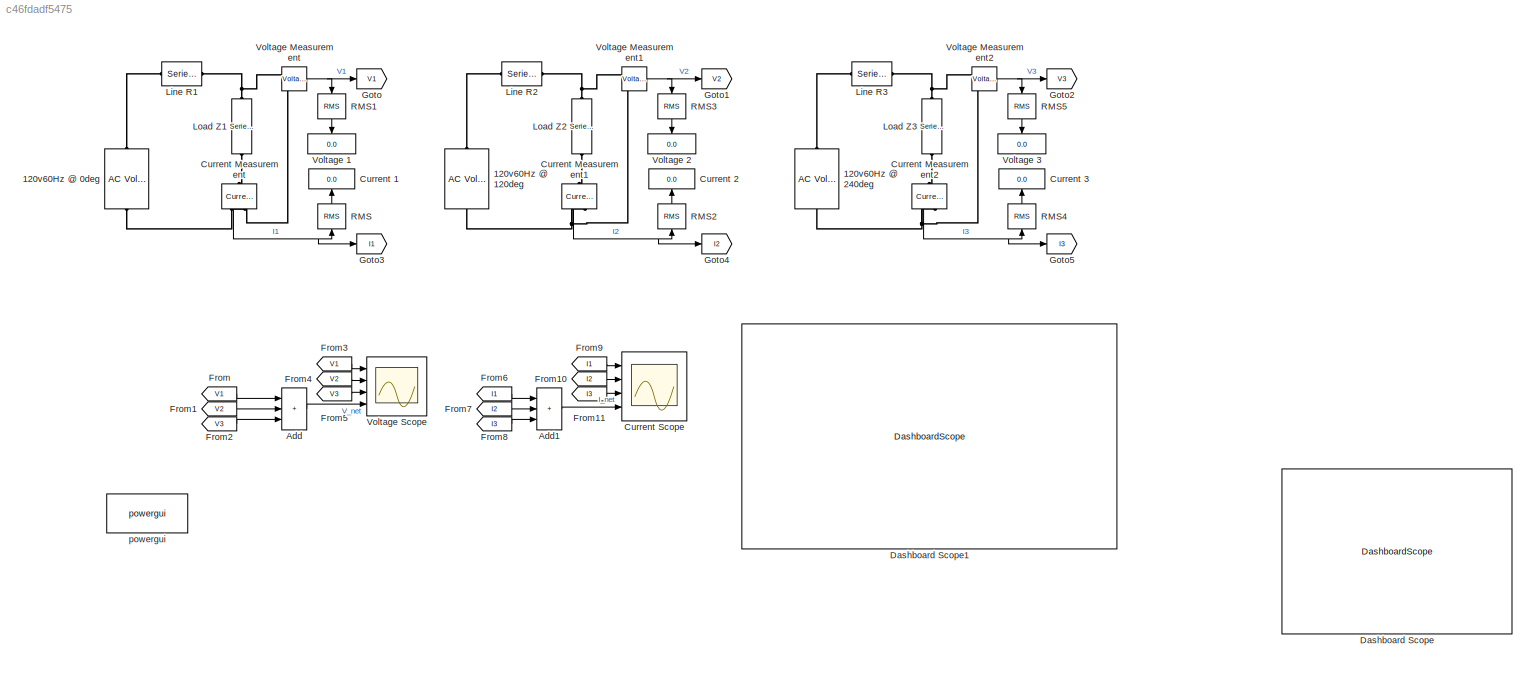
MODEL slx_c46fdadf5475
KIND model
CONFIG AbsTol = auto
CONFIG EnableMultiTasking = off
CONFIG FixedStep = auto
CONFIG MaxStep = auto
CONFIG MinStep = auto
CONFIG RelTol = 1e-3
CONFIG SampleTimeConstraint = Unconstrained
CONFIG Solver = VariableStepAuto
CONFIG SolverName = VariableStepAuto
CONFIG StartTime = 0.0
CONFIG StopTime = 0.50
BLOCK [Reference] 120v60Hz @ 0deg  REF=powerlib/Electrical
Sources/AC Voltage Source
  NameLocation = right
  Ports = [0, 0, 0, 0, 0, 1, 1]
  SourceBlock = powerlib/Electrical\nSources/AC Voltage Source
  SourceProductBaseCode = PS
  SourceType = AC Voltage Source
BLOCK [Reference] 120v60Hz @ 120deg  REF=powerlib/Electrical
Sources/AC Voltage Source
  NameLocation = right
  Ports = [0, 0, 0, 0, 0, 1, 1]
  SourceBlock = powerlib/Electrical\nSources/AC Voltage Source
  SourceProductBaseCode = PS
  SourceType = AC Voltage Source
BLOCK [Reference] 120v60Hz @ 240deg  REF=powerlib/Electrical
Sources/AC Voltage Source
  NameLocation = right
  Ports = [0, 0, 0, 0, 0, 1, 1]
  SourceBlock = powerlib/Electrical\nSources/AC Voltage Source
  SourceProductBaseCode = PS
  SourceType = AC Voltage Source
BLOCK [Sum] Add
  IconShape = rectangular
  Inputs = +++
  Ports = [3, 1]
BLOCK [Sum] Add1
  IconShape = rectangular
  Inputs = +++
  Ports = [3, 1]
BLOCK [Display] Current 1
  Decimation = 1
  NameLocation = right
  Ports = [1]
BLOCK [Display] Current 2
  Decimation = 1
  NameLocation = right
  Ports = [1]
BLOCK [Display] Current 3
  Decimation = 1
  NameLocation = right
  Ports = [1]
BLOCK [Reference] Current Measurement  REF=powerlib/Measurements/Current Measurement
  NameLocation = left
  Ports = [0, 1, 0, 0, 0, 1, 1]
  SourceBlock = powerlib/Measurements/Current Measurement
  SourceProductBaseCode = PS
  SourceType = Current Measurement
  UserDataPersistent = on
BLOCK [Reference] Current Measurement1  REF=powerlib/Measurements/Current Measurement
  NameLocation = left
  Ports = [0, 1, 0, 0, 0, 1, 1]
  SourceBlock = powerlib/Measurements/Current Measurement
  SourceProductBaseCode = PS
  SourceType = Current Measurement
  UserDataPersistent = on
BLOCK [Reference] Current Measurement2  REF=powerlib/Measurements/Current Measurement
  NameLocation = left
  Ports = [0, 1, 0, 0, 0, 1, 1]
  SourceBlock = powerlib/Measurements/Current Measurement
  SourceProductBaseCode = PS
  SourceType = Current Measurement
  UserDataPersistent = on
BLOCK [Scope] Current Scope
  Floating = off
  NumInputPorts = 4
  Ports = [4]
  ScopeSpecificationString = Simulink.scopes.TimeScopeBlockCfg('CurrentConfiguration', extmgr.ConfigurationSet(extmgr.Configuration('Core','General UI',true,'FigureColor',[1 1 1]),extmgr.Configuration('Core','Source UI',true),extmgr.Configuration('Sources','WiredSimulink',true,'DataLoggingVariableName','ScopeData1'),extmgr.Configuration('Visuals','Time Domain',true,'SerializedDisplays',{struct('MinYLimReal','-0.05652','MaxYLi...<+3765ch>
BLOCK [DashboardScope] Dashboard Scope
BLOCK [DashboardScope] Dashboard Scope1
BLOCK [From] From
  GotoTag = V1
BLOCK [From] From1
  GotoTag = V2
BLOCK [From] From10
  GotoTag = I2
BLOCK [From] From11
  GotoTag = I3
BLOCK [From] From2
  GotoTag = V3
BLOCK [From] From3
  GotoTag = V1
BLOCK [From] From4
  GotoTag = V2
BLOCK [From] From5
  GotoTag = V3
BLOCK [From] From6
  GotoTag = I1
BLOCK [From] From7
  GotoTag = I2
BLOCK [From] From8
  GotoTag = I3
BLOCK [From] From9
  GotoTag = I1
BLOCK [Goto] Goto
  GotoTag = V1
  IconDisplay = Signal name
BLOCK [Goto] Goto1
  GotoTag = V2
  IconDisplay = Signal name
BLOCK [Goto] Goto2
  GotoTag = V3
  IconDisplay = Signal name
BLOCK [Goto] Goto3
  GotoTag = I1
  IconDisplay = Signal name
BLOCK [Goto] Goto4
  GotoTag = I2
  IconDisplay = Signal name
BLOCK [Goto] Goto5
  GotoTag = I3
  IconDisplay = Signal name
BLOCK [Reference] Line R1  REF=powerlib/Elements/Series RLC Branch
  Ports = [0, 0, 0, 0, 0, 1, 1]
  SourceBlock = powerlib/Elements/Series RLC Branch
  SourceProductBaseCode = PS
  SourceType = Series RLC Branch
BLOCK [Reference] Line R2  REF=powerlib/Elements/Series RLC Branch
  Ports = [0, 0, 0, 0, 0, 1, 1]
  SourceBlock = powerlib/Elements/Series RLC Branch
  SourceProductBaseCode = PS
  SourceType = Series RLC Branch
BLOCK [Reference] Line R3  REF=powerlib/Elements/Series RLC Branch
  Ports = [0, 0, 0, 0, 0, 1, 1]
  SourceBlock = powerlib/Elements/Series RLC Branch
  SourceProductBaseCode = PS
  SourceType = Series RLC Branch
BLOCK [Reference] Load Z1  REF=powerlib/Elements/Series RLC Branch
  NameLocation = left
  Ports = [0, 0, 0, 0, 0, 1, 1]
  SourceBlock = powerlib/Elements/Series RLC Branch
  SourceProductBaseCode = PS
  SourceType = Series RLC Branch
BLOCK [Reference] Load Z2  REF=powerlib/Elements/Series RLC Branch
  NameLocation = left
  Ports = [0, 0, 0, 0, 0, 1, 1]
  SourceBlock = powerlib/Elements/Series RLC Branch
  SourceProductBaseCode = PS
  SourceType = Series RLC Branch
BLOCK [Reference] Load Z3  REF=powerlib/Elements/Series RLC Branch
  NameLocation = left
  Ports = [0, 0, 0, 0, 0, 1, 1]
  SourceBlock = powerlib/Elements/Series RLC Branch
  SourceProductBaseCode = PS
  SourceType = Series RLC Branch
BLOCK [Reference] RMS  REF=powerlib_meascontrol/Measurements/RMS
  NameLocation = right
  Ports = [1, 1]
  SourceBlock = powerlib_meascontrol/Measurements/RMS
  SourceProductBaseCode = PS
  SourceType = RMS
BLOCK [Reference] RMS1  REF=powerlib_meascontrol/Measurements/RMS
  NameLocation = left
  Ports = [1, 1]
  SourceBlock = powerlib_meascontrol/Measurements/RMS
  SourceProductBaseCode = PS
  SourceType = RMS
BLOCK [Reference] RMS2  REF=powerlib_meascontrol/Measurements/RMS
  NameLocation = right
  Ports = [1, 1]
  SourceBlock = powerlib_meascontrol/Measurements/RMS
  SourceProductBaseCode = PS
  SourceType = RMS
BLOCK [Reference] RMS3  REF=powerlib_meascontrol/Measurements/RMS
  NameLocation = left
  Ports = [1, 1]
  SourceBlock = powerlib_meascontrol/Measurements/RMS
  SourceProductBaseCode = PS
  SourceType = RMS
BLOCK [Reference] RMS4  REF=powerlib_meascontrol/Measurements/RMS
  NameLocation = right
  Ports = [1, 1]
  SourceBlock = powerlib_meascontrol/Measurements/RMS
  SourceProductBaseCode = PS
  SourceType = RMS
BLOCK [Reference] RMS5  REF=powerlib_meascontrol/Measurements/RMS
  NameLocation = left
  Ports = [1, 1]
  SourceBlock = powerlib_meascontrol/Measurements/RMS
  SourceProductBaseCode = PS
  SourceType = RMS
BLOCK [Display] Voltage 1
  Decimation = 1
  NameLocation = right
  Ports = [1]
BLOCK [Display] Voltage 2
  Decimation = 1
  NameLocation = right
  Ports = [1]
BLOCK [Display] Voltage 3
  Decimation = 1
  NameLocation = right
  Ports = [1]
BLOCK [Reference] Voltage Measurement  REF=powerlib/Measurements/Voltage Measurement
  Ports = [0, 1, 0, 0, 0, 2]
  SourceBlock = powerlib/Measurements/Voltage Measurement
  SourceProductBaseCode = PS
  SourceType = Voltage Measurement
  UserDataPersistent = on
BLOCK [Reference] Voltage Measurement1  REF=powerlib/Measurements/Voltage Measurement
  Ports = [0, 1, 0, 0, 0, 2]
  SourceBlock = powerlib/Measurements/Voltage Measurement
  SourceProductBaseCode = PS
  SourceType = Voltage Measurement
  UserDataPersistent = on
BLOCK [Reference] Voltage Measurement2  REF=powerlib/Measurements/Voltage Measurement
  Ports = [0, 1, 0, 0, 0, 2]
  SourceBlock = powerlib/Measurements/Voltage Measurement
  SourceProductBaseCode = PS
  SourceType = Voltage Measurement
  UserDataPersistent = on
BLOCK [Scope] Voltage Scope
  Floating = off
  NumInputPorts = 4
  Ports = [4]
  ScopeSpecificationString = Simulink.scopes.TimeScopeBlockCfg('CurrentConfiguration', extmgr.ConfigurationSet(extmgr.Configuration('Core','General UI',true),extmgr.Configuration('Core','Source UI',true),extmgr.Configuration('Sources','WiredSimulink',true),extmgr.Configuration('Visuals','Time Domain',true,'SerializedDisplays',{struct('MinYLimReal','-149.98916','MaxYLimReal','149.98915','YLabelReal','','MinYLimMag',' 0.00000',...<+3474ch>
BLOCK [Reference] powergui  REF=powerlib/powergui
  Ports = []
  Priority = 1
  SourceBlock = powerlib/powergui
  SourceProductBaseCode = PS
  SourceType = PSB option menu block
LINE Add1:1 -> Current Scope:4
LINE Add:1 -> Voltage Scope:4
NET Current Measurement1:1 -> Goto4:1, RMS2:1
NET Current Measurement2:1 -> Goto5:1, RMS4:1
NET Current Measurement:1 -> Goto3:1, RMS:1
LINE From10:1 -> Current Scope:2
LINE From11:1 -> Current Scope:3
LINE From1:1 -> Add:2
LINE From2:1 -> Add:3
LINE From3:1 -> Voltage Scope:1
LINE From4:1 -> Voltage Scope:2
LINE From5:1 -> Voltage Scope:3
LINE From6:1 -> Add1:1
LINE From7:1 -> Add1:2
LINE From8:1 -> Add1:3
LINE From9:1 -> Current Scope:1
LINE From:1 -> Add:1
LINE RMS1:1 -> Voltage 1:1
LINE RMS2:1 -> Current 2:1
LINE RMS3:1 -> Voltage 2:1
LINE RMS4:1 -> Current 3:1
LINE RMS5:1 -> Voltage 3:1
LINE RMS:1 -> Current 1:1
NET Voltage Measurement1:1 -> Goto1:1, RMS3:1
NET Voltage Measurement2:1 -> Goto2:1, RMS5:1
NET Voltage Measurement:1 -> Goto:1, RMS1:1
PNET net1: 120v60Hz @ 0deg:LConn1 -- Current Measurement:RConn1 -- Voltage Measurement:LConn2
PLINE 120v60Hz @ 0deg:RConn1 -- Line R1:LConn1
PNET net2: 120v60Hz @ 120deg:LConn1 -- Current Measurement1:RConn1 -- Voltage Measurement1:LConn2
PLINE 120v60Hz @ 120deg:RConn1 -- Line R2:LConn1
PNET net3: 120v60Hz @ 240deg:LConn1 -- Current Measurement2:RConn1 -- Voltage Measurement2:LConn2
PLINE 120v60Hz @ 240deg:RConn1 -- Line R3:LConn1
PLINE Current Measurement1:LConn1 -- Load Z2:RConn1
PLINE Current Measurement2:LConn1 -- Load Z3:RConn1
PLINE Current Measurement:LConn1 -- Load Z1:RConn1
PNET net4: Line R1:RConn1 -- Load Z1:LConn1 -- Voltage Measurement:LConn1
PNET net5: Line R2:RConn1 -- Load Z2:LConn1 -- Voltage Measurement1:LConn1
PNET net6: Line R3:RConn1 -- Load Z3:LConn1 -- Voltage Measurement2:LConn1
note: NET lines group one-source signal fan-out (src -> all destinations, sorted); 1:1 wires keep LINE; PNET lines group multi-terminal physical nets as a canonical sorted terminal list (undirected conserving connections); 2-terminal nets keep the pairwise PLINE form
